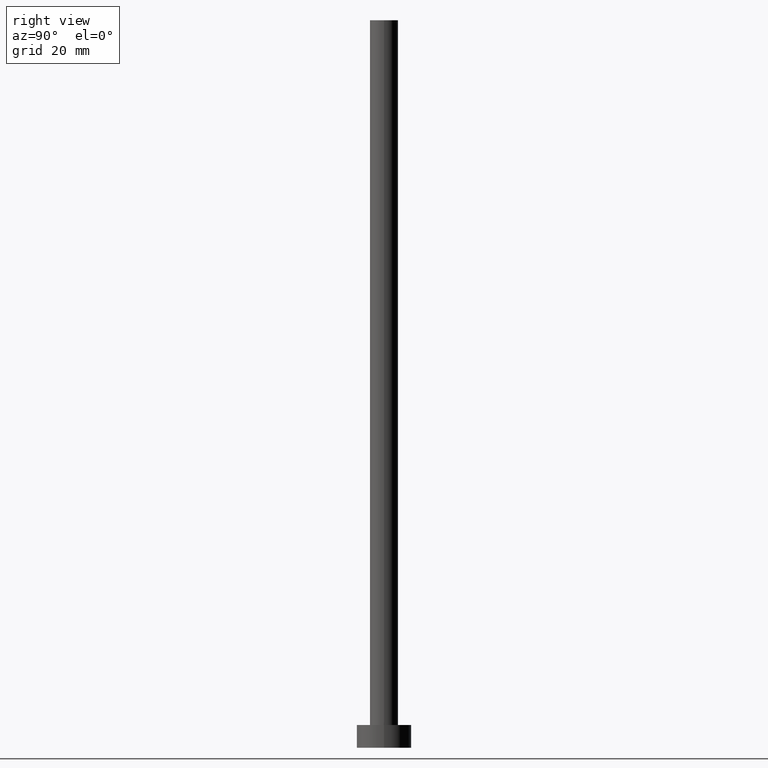
[diagram: clean part render]
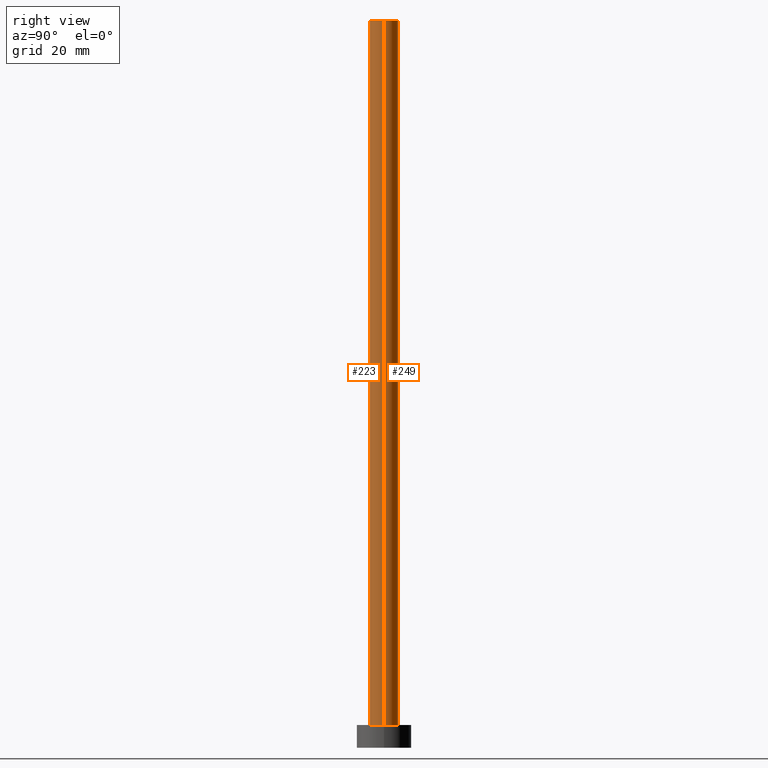
[diagram: same view with one multi-face feature highlighted, each face labeled with its STEP entity id]
A machine part, right view. The highlighted faces form ONE feature: a constant-radius fillet chain: 2 tangent blend faces with common blend radius 3.1 mm. The faces share edges in the B-rep.
Their STEP definitions:
[1] entity #223 (Cylinder):
#1 = CARTESIAN_POINT ( 'NONE',  ( -3.100000000000000089, 0.000000000000000000, 160.0000000000000000 ) ) ;
#15 = ORIENTED_EDGE ( 'NONE', *, *, #164, .F. ) ;
#25 = CARTESIAN_POINT ( 'NONE',  ( -3.100000000000000089, 0.000000000000000000, 5.000000000000000000 ) ) ;
#26 = AXIS2_PLACEMENT_3D ( 'NONE', #199, #43, #111 ) ;
#30 = FACE_OUTER_BOUND ( 'NONE', #174, .T. ) ;
#34 = AXIS2_PLACEMENT_3D ( 'NONE', #138, #145, #185 ) ;
#41 = ORIENTED_EDGE ( 'NONE', *, *, #192, .T. ) ;
#43 = DIRECTION ( 'NONE',  ( 0.000000000000000000, 0.000000000000000000, 1.000000000000000000 ) ) ;
#57 = CIRCLE ( 'NONE', #26, 3.100000000000000089 ) ;
#60 = LINE ( 'NONE', #93, #115 ) ;
#73 = VECTOR ( 'NONE', #225, 1000.000000000000000 ) ;
#86 = ORIENTED_EDGE ( 'NONE', *, *, #219, .T. ) ;
#89 = ORIENTED_EDGE ( 'NONE', *, *, #208, .F. ) ;
#91 = CARTESIAN_POINT ( 'NONE',  ( 3.100000000000000089, 3.796405077356794918E-16, 160.0000000000000000 ) ) ;
#93 = CARTESIAN_POINT ( 'NONE',  ( -3.100000000000000089, 0.000000000000000000, 160.0000000000000000 ) ) ;
#104 = VERTEX_POINT ( 'NONE', #25 ) ;
#111 = DIRECTION ( 'NONE',  ( 1.000000000000000000, 0.000000000000000000, 0.000000000000000000 ) ) ;
#115 = VECTOR ( 'NONE', #132, 1000.000000000000000 ) ;
#121 = VERTEX_POINT ( 'NONE', #200 ) ;
#127 = VERTEX_POINT ( 'NONE', #1 ) ;
#132 = DIRECTION ( 'NONE',  ( -0.000000000000000000, -0.000000000000000000, -1.000000000000000000 ) ) ;
#138 = CARTESIAN_POINT ( 'NONE',  ( 0.000000000000000000, 0.000000000000000000, 160.0000000000000000 ) ) ;
#145 = DIRECTION ( 'NONE',  ( -0.000000000000000000, -0.000000000000000000, -1.000000000000000000 ) ) ;
#151 = VERTEX_POINT ( 'NONE', #179 ) ;
#160 = CARTESIAN_POINT ( 'NONE',  ( 0.000000000000000000, 0.000000000000000000, 5.000000000000000000 ) ) ;
#164 = EDGE_CURVE ( 'NONE', #151, #121, #181, .T. ) ;
#166 = CIRCLE ( 'NONE', #173, 3.100000000000000089 ) ;
#173 = AXIS2_PLACEMENT_3D ( 'NONE', #160, #244, #183 ) ;
#174 = EDGE_LOOP ( 'NONE', ( #15, #89, #41, #86 ) ) ;
#179 = CARTESIAN_POINT ( 'NONE',  ( 3.100000000000000089, 3.796405077356794918E-16, 160.0000000000000000 ) ) ;
#181 = LINE ( 'NONE', #91, #73 ) ;
#183 = DIRECTION ( 'NONE',  ( 1.000000000000000000, 0.000000000000000000, 0.000000000000000000 ) ) ;
#185 = DIRECTION ( 'NONE',  ( -1.000000000000000000, 0.000000000000000000, 0.000000000000000000 ) ) ;
#192 = EDGE_CURVE ( 'NONE', #127, #104, #60, .T. ) ;
#199 = CARTESIAN_POINT ( 'NONE',  ( 0.000000000000000000, 0.000000000000000000, 160.0000000000000000 ) ) ;
#200 = CARTESIAN_POINT ( 'NONE',  ( 3.100000000000000089, 3.796405077356794918E-16, 5.000000000000000000 ) ) ;
#208 = EDGE_CURVE ( 'NONE', #127, #151, #57, .T. ) ;
#219 = EDGE_CURVE ( 'NONE', #104, #121, #166, .T. ) ;
#223 = ADVANCED_FACE ( 'NONE', ( #30 ), #229, .T. ) ;
#225 = DIRECTION ( 'NONE',  ( -0.000000000000000000, -0.000000000000000000, -1.000000000000000000 ) ) ;
#229 = CYLINDRICAL_SURFACE ( 'NONE', #34, 3.100000000000000089 ) ;
#244 = DIRECTION ( 'NONE',  ( 0.000000000000000000, 0.000000000000000000, 1.000000000000000000 ) ) ;
[2] entity #249 (Cylinder):
#1 = CARTESIAN_POINT ( 'NONE',  ( -3.100000000000000089, 0.000000000000000000, 160.0000000000000000 ) ) ;
#5 = DIRECTION ( 'NONE',  ( 1.000000000000000000, 0.000000000000000000, 0.000000000000000000 ) ) ;
#20 = DIRECTION ( 'NONE',  ( 0.000000000000000000, 0.000000000000000000, 1.000000000000000000 ) ) ;
#25 = CARTESIAN_POINT ( 'NONE',  ( -3.100000000000000089, 0.000000000000000000, 5.000000000000000000 ) ) ;
#29 = DIRECTION ( 'NONE',  ( -0.000000000000000000, -0.000000000000000000, -1.000000000000000000 ) ) ;
#37 = ORIENTED_EDGE ( 'NONE', *, *, #197, .T. ) ;
#50 = CARTESIAN_POINT ( 'NONE',  ( 0.000000000000000000, 0.000000000000000000, 160.0000000000000000 ) ) ;
#58 = DIRECTION ( 'NONE',  ( 0.000000000000000000, 0.000000000000000000, 1.000000000000000000 ) ) ;
#60 = LINE ( 'NONE', #93, #115 ) ;
#72 = ORIENTED_EDGE ( 'NONE', *, *, #130, .F. ) ;
#73 = VECTOR ( 'NONE', #225, 1000.000000000000000 ) ;
#80 = CARTESIAN_POINT ( 'NONE',  ( 0.000000000000000000, 0.000000000000000000, 160.0000000000000000 ) ) ;
#91 = CARTESIAN_POINT ( 'NONE',  ( 3.100000000000000089, 3.796405077356794918E-16, 160.0000000000000000 ) ) ;
#93 = CARTESIAN_POINT ( 'NONE',  ( -3.100000000000000089, 0.000000000000000000, 160.0000000000000000 ) ) ;
#104 = VERTEX_POINT ( 'NONE', #25 ) ;
#110 = CIRCLE ( 'NONE', #147, 3.100000000000000089 ) ;
#115 = VECTOR ( 'NONE', #132, 1000.000000000000000 ) ;
#121 = VERTEX_POINT ( 'NONE', #200 ) ;
#122 = CIRCLE ( 'NONE', #128, 3.100000000000000089 ) ;
#127 = VERTEX_POINT ( 'NONE', #1 ) ;
#128 = AXIS2_PLACEMENT_3D ( 'NONE', #221, #20, #5 ) ;
#130 = EDGE_CURVE ( 'NONE', #151, #127, #110, .T. ) ;
#131 = DIRECTION ( 'NONE',  ( 1.000000000000000000, 0.000000000000000000, 0.000000000000000000 ) ) ;
#132 = DIRECTION ( 'NONE',  ( -0.000000000000000000, -0.000000000000000000, -1.000000000000000000 ) ) ;
#141 = CYLINDRICAL_SURFACE ( 'NONE', #149, 3.100000000000000089 ) ;
#147 = AXIS2_PLACEMENT_3D ( 'NONE', #80, #58, #131 ) ;
#149 = AXIS2_PLACEMENT_3D ( 'NONE', #50, #29, #172 ) ;
#151 = VERTEX_POINT ( 'NONE', #179 ) ;
#164 = EDGE_CURVE ( 'NONE', #151, #121, #181, .T. ) ;
#172 = DIRECTION ( 'NONE',  ( -1.000000000000000000, 0.000000000000000000, 0.000000000000000000 ) ) ;
#179 = CARTESIAN_POINT ( 'NONE',  ( 3.100000000000000089, 3.796405077356794918E-16, 160.0000000000000000 ) ) ;
#181 = LINE ( 'NONE', #91, #73 ) ;
#192 = EDGE_CURVE ( 'NONE', #127, #104, #60, .T. ) ;
#193 = EDGE_LOOP ( 'NONE', ( #72, #196, #37, #237 ) ) ;
#196 = ORIENTED_EDGE ( 'NONE', *, *, #164, .T. ) ;
#197 = EDGE_CURVE ( 'NONE', #121, #104, #122, .T. ) ;
#200 = CARTESIAN_POINT ( 'NONE',  ( 3.100000000000000089, 3.796405077356794918E-16, 5.000000000000000000 ) ) ;
#221 = CARTESIAN_POINT ( 'NONE',  ( 0.000000000000000000, 0.000000000000000000, 5.000000000000000000 ) ) ;
#225 = DIRECTION ( 'NONE',  ( -0.000000000000000000, -0.000000000000000000, -1.000000000000000000 ) ) ;
#228 = FACE_OUTER_BOUND ( 'NONE', #193, .T. ) ;
#237 = ORIENTED_EDGE ( 'NONE', *, *, #192, .F. ) ;
#249 = ADVANCED_FACE ( 'NONE', ( #228 ), #141, .T. ) ;